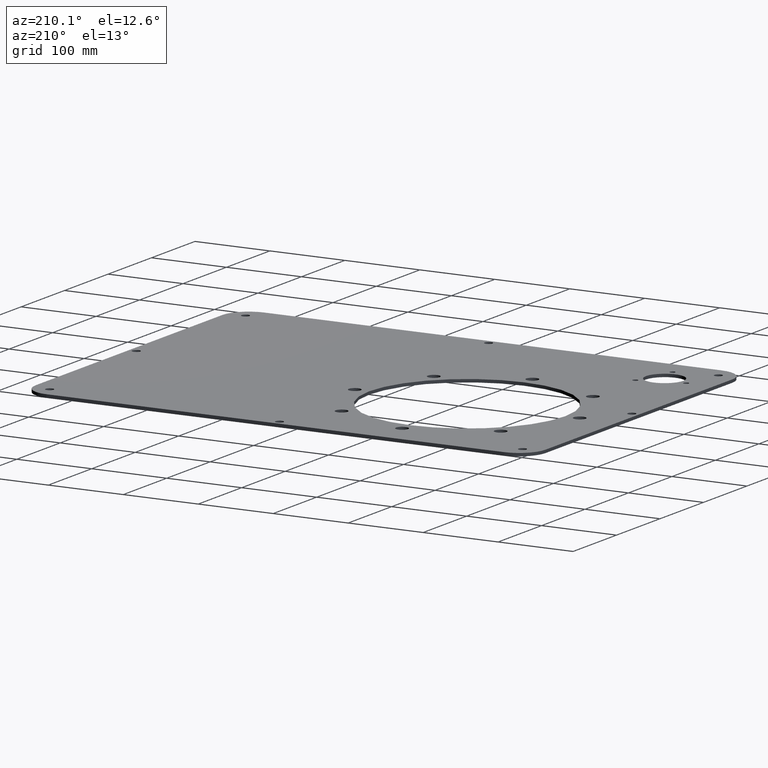
[diagram: clean part render]
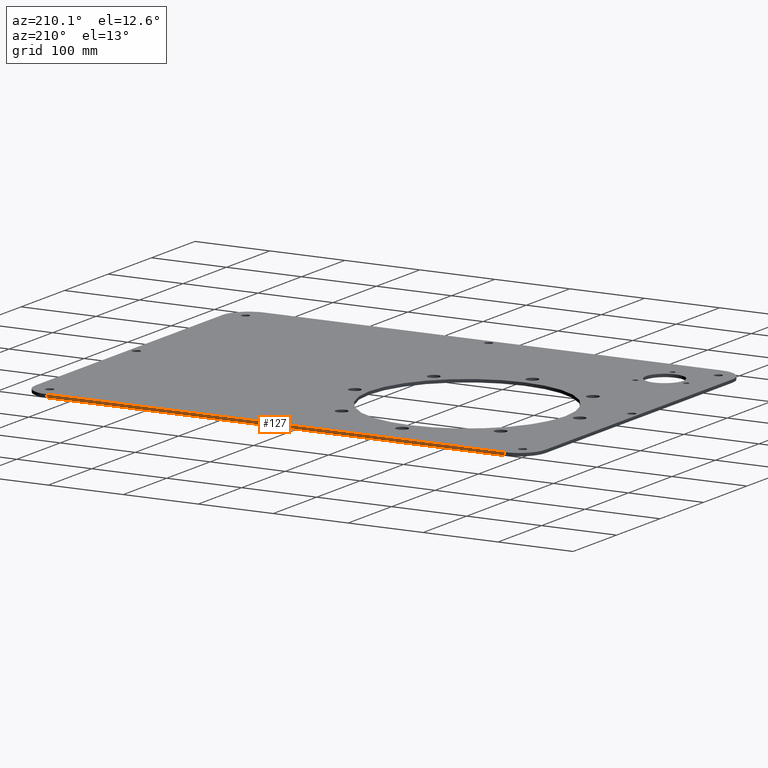
[diagram: same view with one face highlighted and labeled with its STEP entity id]
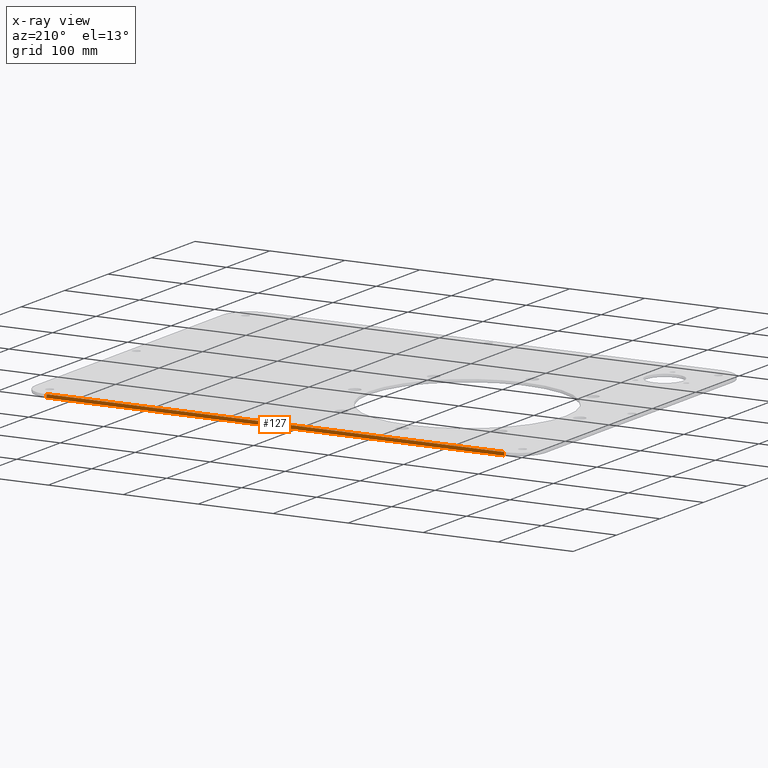
[diagram: x-ray of the same camera — body ghosted, the highlighted face saturated]
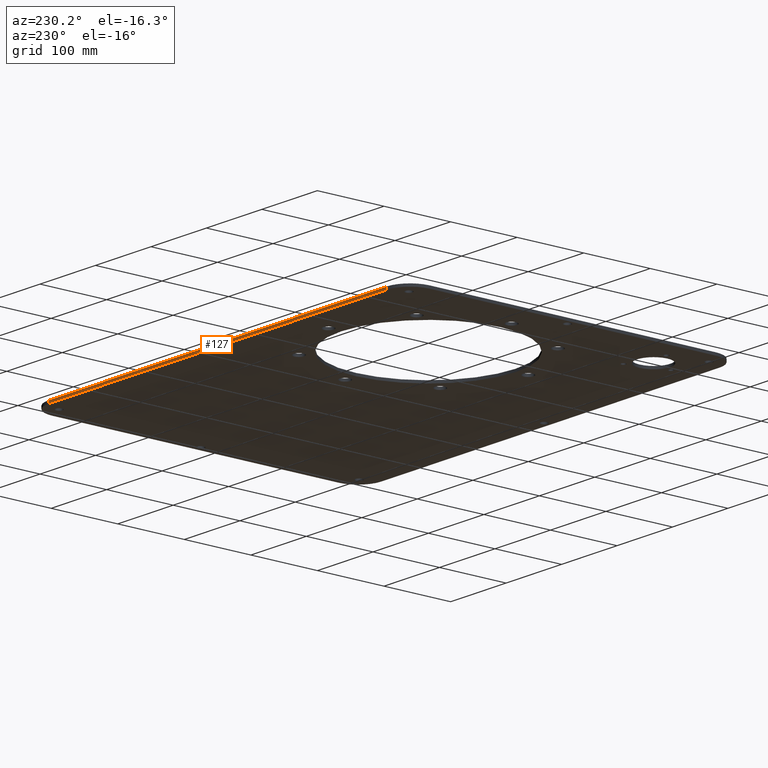
[diagram: same view with one face highlighted and labeled with its STEP entity id]
A machine part, auxiliary view. The second image highlights one B-rep face of the part: STEP entity #127.
The next image is the same camera in x-ray: the body ghosted, the highlighted face saturated — about 0% of this face is hidden behind the body in this view.
A second angle (auxiliary view) of the same face is appended — the face is thin or edge-on in the first view.
In plain terms, the highlighted planar face has unit normal (0, -1, 0).
Its self-contained STEP definition (entity closure, byte-faithful):
#119=PLANE('',#630);
#127=ADVANCED_FACE('',(#183),#119,.F.);
#183=FACE_OUTER_BOUND('',#193,.T.);
#193=EDGE_LOOP('',(#328,#329,#330,#331));
#289=LINE('',#902,#305);
#290=LINE('',#906,#306);
#291=LINE('',#908,#307);
#292=LINE('',#910,#308);
#305=VECTOR('',#721,1.);
#306=VECTOR('',#726,1.);
#307=VECTOR('',#727,1.);
#308=VECTOR('',#728,1.);
#328=ORIENTED_EDGE('',*,*,#516,.T.);
#329=ORIENTED_EDGE('',*,*,#517,.F.);
#330=ORIENTED_EDGE('',*,*,#518,.F.);
#331=ORIENTED_EDGE('',*,*,#514,.T.);
#454=VERTEX_POINT('',#901);
#455=VERTEX_POINT('',#903);
#456=VERTEX_POINT('',#907);
#457=VERTEX_POINT('',#909);
#514=EDGE_CURVE('',#455,#454,#289,.T.);
#516=EDGE_CURVE('',#454,#456,#290,.T.);
#517=EDGE_CURVE('',#457,#456,#291,.T.);
#518=EDGE_CURVE('',#455,#457,#292,.T.);
#630=AXIS2_PLACEMENT_3D('',#911,#729,#730);
#721=DIRECTION('',(0.,0.,-1.));
#726=DIRECTION('',(-1.,0.,0.));
#727=DIRECTION('',(0.,0.,-1.));
#728=DIRECTION('',(-1.,0.,0.));
#729=DIRECTION('',(0.,-1.,0.));
#730=DIRECTION('',(0.,0.,-1.));
#901=CARTESIAN_POINT('',(305.,-2750.,0.));
#902=CARTESIAN_POINT('',(305.,-2750.,4.));
#903=CARTESIAN_POINT('',(305.,-2750.,4.));
#906=CARTESIAN_POINT('',(305.,-2750.,0.));
#907=CARTESIAN_POINT('',(-305.,-2750.,0.));
#908=CARTESIAN_POINT('',(-305.,-2750.,4.));
#909=CARTESIAN_POINT('',(-305.,-2750.,4.));
#910=CARTESIAN_POINT('',(305.,-2750.,4.));
#911=CARTESIAN_POINT('',(305.,-2750.,4.));